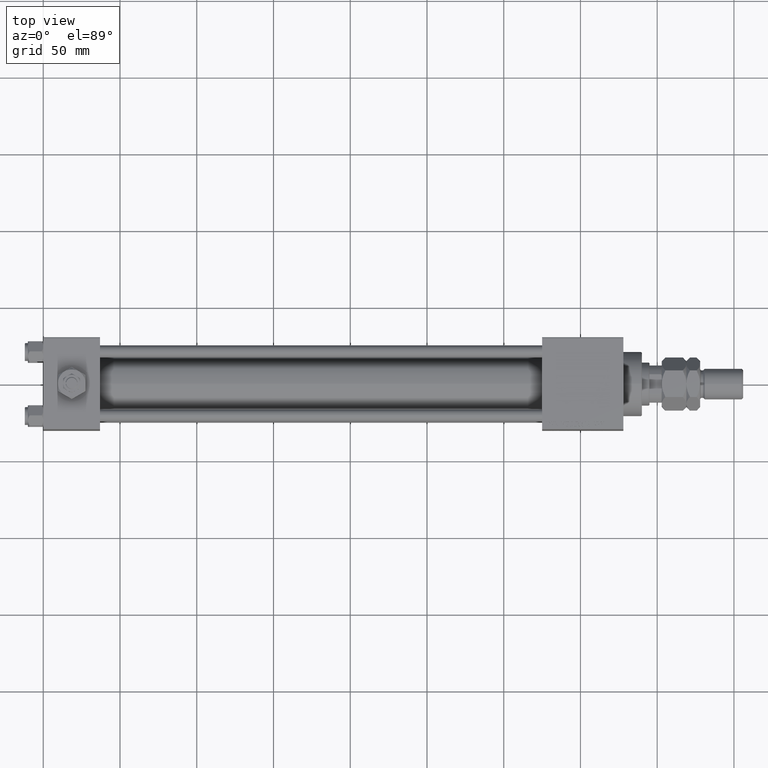
[diagram: clean part render]
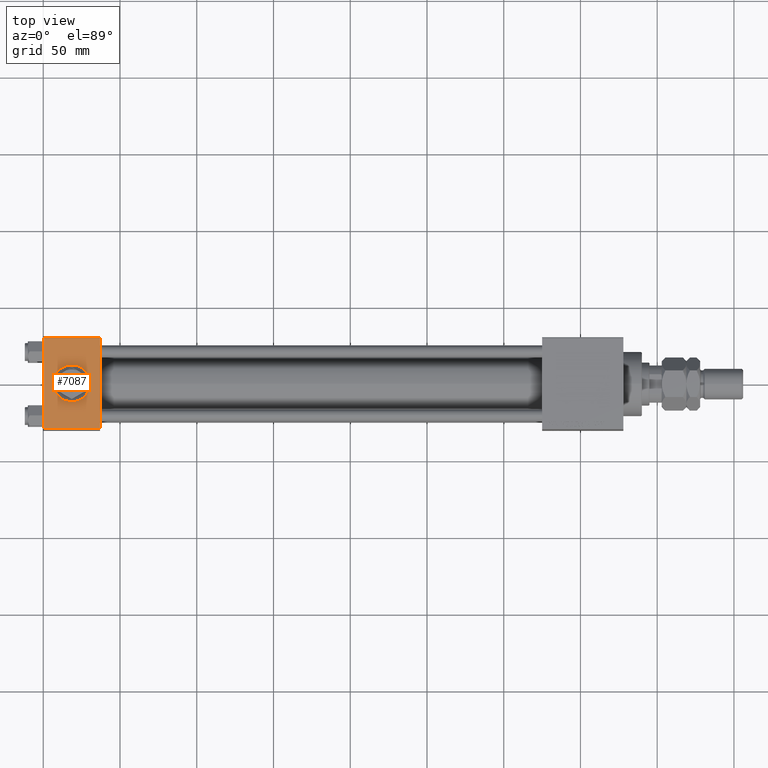
[diagram: same view with one face highlighted and labeled with its STEP entity id]
A machine part, top view. The second image highlights one B-rep face of the part: STEP entity #7087.
In plain terms, the highlighted planar face has unit normal (0, 0, -1).
Its self-contained STEP definition (entity closure, byte-faithful):
#937 = CARTESIAN_POINT ( 'NONE',  ( 37.00000000000000000, -29.50000000000000000, 29.99999999999999289 ) ) ;
#2162 = AXIS2_PLACEMENT_3D ( 'NONE', #2234, #47728, #23351 ) ;
#2234 = CARTESIAN_POINT ( 'NONE',  ( 18.50000000000000000, -3.469446951953614978E-15, 29.99999999999999645 ) ) ;
#3131 = EDGE_CURVE ( 'NONE', #45979, #48052, #42621, .T. ) ;
#4130 = CARTESIAN_POINT ( 'NONE',  ( 37.00000000000000000, -29.49999999999998579, 29.99999999999999289 ) ) ;
#5757 = ORIENTED_EDGE ( 'NONE', *, *, #12814, .T. ) ;
#6237 = VECTOR ( 'NONE', #49587, 1000.000000000000000 ) ;
#6684 = AXIS2_PLACEMENT_3D ( 'NONE', #40017, #15102, #31631 ) ;
#7087 = ADVANCED_FACE ( 'NONE', ( #23909, #9949 ), #35117, .F. ) ;
#7362 = LINE ( 'NONE', #8159, #6237 ) ;
#7865 = AXIS2_PLACEMENT_3D ( 'NONE', #36107, #52637, #15251 ) ;
#7874 = VERTEX_POINT ( 'NONE', #37782 ) ;
#8043 = VERTEX_POINT ( 'NONE', #43722 ) ;
#8159 = CARTESIAN_POINT ( 'NONE',  ( 0.000000000000000000, 29.99999999999999289, 30.00000000000000000 ) ) ;
#9211 = ORIENTED_EDGE ( 'NONE', *, *, #29657, .T. ) ;
#9335 = DIRECTION ( 'NONE',  ( 1.000000000000000000, 0.000000000000000000, 0.000000000000000000 ) ) ;
#9949 = FACE_OUTER_BOUND ( 'NONE', #32327, .T. ) ;
#12591 = VERTEX_POINT ( 'NONE', #43808 ) ;
#12722 = CIRCLE ( 'NONE', #6684, 12.00000000000000000 ) ;
#12814 = EDGE_CURVE ( 'NONE', #42581, #45979, #7362, .T. ) ;
#15102 = DIRECTION ( 'NONE',  ( 0.000000000000000000, 0.000000000000000000, 1.000000000000000000 ) ) ;
#15251 = DIRECTION ( 'NONE',  ( 0.000000000000000000, 1.000000000000000000, 1.156482317317871725E-16 ) ) ;
#19626 = LINE ( 'NONE', #48867, #37885 ) ;
#19771 = ORIENTED_EDGE ( 'NONE', *, *, #23508, .F. ) ;
#20260 = CARTESIAN_POINT ( 'NONE',  ( 37.00000000000000000, 29.99999999999999289, 30.00000000000000000 ) ) ;
#23351 = DIRECTION ( 'NONE',  ( 1.000000000000000000, 0.000000000000000000, 0.000000000000000000 ) ) ;
#23508 = EDGE_CURVE ( 'NONE', #8043, #7874, #36750, .T. ) ;
#23799 = DIRECTION ( 'NONE',  ( 0.000000000000000000, -1.000000000000000000, -1.156482317317871725E-16 ) ) ;
#23909 = FACE_BOUND ( 'NONE', #35735, .T. ) ;
#24013 = CARTESIAN_POINT ( 'NONE',  ( 0.000000000000000000, 29.49999999999999289, 30.00000000000000000 ) ) ;
#25343 = VECTOR ( 'NONE', #23799, 1000.000000000000000 ) ;
#25807 = ORIENTED_EDGE ( 'NONE', *, *, #3131, .T. ) ;
#29657 = EDGE_CURVE ( 'NONE', #12591, #42581, #19626, .T. ) ;
#30587 = CARTESIAN_POINT ( 'NONE',  ( 0.000000000000000000, -29.49999999999998579, 29.99999999999999289 ) ) ;
#31631 = DIRECTION ( 'NONE',  ( 1.000000000000000000, 0.000000000000000000, 0.000000000000000000 ) ) ;
#32327 = EDGE_LOOP ( 'NONE', ( #5757, #25807, #37671, #9211 ) ) ;
#33967 = DIRECTION ( 'NONE',  ( -1.000000000000000000, 0.000000000000000000, 0.000000000000000000 ) ) ;
#35117 = PLANE ( 'NONE',  #7865 ) ;
#35735 = EDGE_LOOP ( 'NONE', ( #44243, #19771 ) ) ;
#36107 = CARTESIAN_POINT ( 'NONE',  ( 37.00000000000000000, 29.99999999999999289, 30.00000000000000000 ) ) ;
#36750 = CIRCLE ( 'NONE', #2162, 12.00000000000000000 ) ;
#37671 = ORIENTED_EDGE ( 'NONE', *, *, #40410, .F. ) ;
#37782 = CARTESIAN_POINT ( 'NONE',  ( 30.50000000000000000, -3.469446951953614978E-15, 29.99999999999999645 ) ) ;
#37885 = VECTOR ( 'NONE', #33967, 1000.000000000000000 ) ;
#40017 = CARTESIAN_POINT ( 'NONE',  ( 18.50000000000000000, -3.469446951953614978E-15, 29.99999999999999645 ) ) ;
#40410 = EDGE_CURVE ( 'NONE', #12591, #48052, #52525, .T. ) ;
#42581 = VERTEX_POINT ( 'NONE', #24013 ) ;
#42621 = LINE ( 'NONE', #937, #44035 ) ;
#43722 = CARTESIAN_POINT ( 'NONE',  ( 6.499999999999997335, -1.999870792976790833E-15, 29.99999999999999645 ) ) ;
#43808 = CARTESIAN_POINT ( 'NONE',  ( 37.00000000000000000, 29.49999999999999289, 30.00000000000000000 ) ) ;
#44035 = VECTOR ( 'NONE', #9335, 1000.000000000000000 ) ;
#44243 = ORIENTED_EDGE ( 'NONE', *, *, #52309, .F. ) ;
#45979 = VERTEX_POINT ( 'NONE', #30587 ) ;
#47728 = DIRECTION ( 'NONE',  ( 0.000000000000000000, 0.000000000000000000, 1.000000000000000000 ) ) ;
#48052 = VERTEX_POINT ( 'NONE', #4130 ) ;
#48867 = CARTESIAN_POINT ( 'NONE',  ( 0.000000000000000000, 29.49999999999999289, 30.00000000000000000 ) ) ;
#49587 = DIRECTION ( 'NONE',  ( 0.000000000000000000, -1.000000000000000000, -1.156482317317871725E-16 ) ) ;
#52309 = EDGE_CURVE ( 'NONE', #7874, #8043, #12722, .T. ) ;
#52525 = LINE ( 'NONE', #20260, #25343 ) ;
#52637 = DIRECTION ( 'NONE',  ( 0.000000000000000000, 1.156482317317871725E-16, -1.000000000000000000 ) ) ;